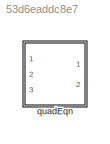
MODEL slx_53d6eaddc8e7
KIND library
CONFIG AbsTol = auto
CONFIG EnableMultiTasking = off
CONFIG FixedStep = auto
CONFIG MaxStep = auto
CONFIG MinStep = auto
CONFIG RelTol = 1e-3
CONFIG SampleTimeConstraint = Unconstrained
CONFIG SolverName = VariableStepAuto
CONFIG StartTime = 0.0
CONFIG StopTime = 10.0
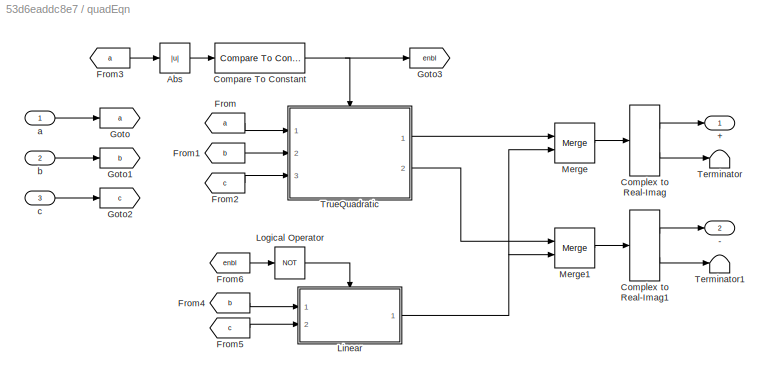
BLOCK [SubSystem] quadEqn
  Ports = [3, 2]
  RequestExecContextInheritance = off
BLOCK [Outport] quadEqn/+
  VectorParamsAs1DForOutWhenUnconnected = off
BLOCK [Outport] quadEqn/-
  Port = 2
  VectorParamsAs1DForOutWhenUnconnected = off
BLOCK [Abs] quadEqn/Abs
  SaturateOnIntegerOverflow = off
BLOCK [Reference] quadEqn/Compare To Constant  REF=simulink/Logic and Bit
Operations/Compare
To Constant
  Ports = [1, 1]
  SourceBlock = simulink/Logic and Bit\nOperations/Compare\nTo Constant
  SourceProductBaseCode = SL
  SourceType = Compare To Constant
BLOCK [ComplexToRealImag] quadEqn/Complex to Real-Imag
  Ports = [1, 2]
BLOCK [ComplexToRealImag] quadEqn/Complex to Real-Imag1
  Ports = [1, 2]
BLOCK [From] quadEqn/From
  GotoTag = a
BLOCK [From] quadEqn/From1
  GotoTag = b
BLOCK [From] quadEqn/From2
  GotoTag = c
BLOCK [From] quadEqn/From3
  GotoTag = a
BLOCK [From] quadEqn/From4
  GotoTag = b
BLOCK [From] quadEqn/From5
  GotoTag = c
BLOCK [From] quadEqn/From6
  GotoTag = enbl
BLOCK [Goto] quadEqn/Goto
  GotoTag = a
BLOCK [Goto] quadEqn/Goto1
  GotoTag = b
BLOCK [Goto] quadEqn/Goto2
  GotoTag = c
BLOCK [Goto] quadEqn/Goto3
  GotoTag = enbl
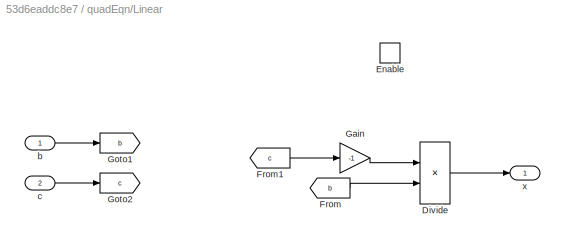
BLOCK [SubSystem] quadEqn/Linear
  Ports = [2, 1, 1]
  RequestExecContextInheritance = off
BLOCK [Product] quadEqn/Linear/Divide
  Inputs = */
  Ports = [2, 1]
BLOCK [EnablePort] quadEqn/Linear/Enable
  Ports = []
BLOCK [From] quadEqn/Linear/From
  GotoTag = b
BLOCK [From] quadEqn/Linear/From1
  GotoTag = c
BLOCK [Gain] quadEqn/Linear/Gain
  Gain = -1
BLOCK [Goto] quadEqn/Linear/Goto1
  GotoTag = b
BLOCK [Goto] quadEqn/Linear/Goto2
  GotoTag = c
BLOCK [Inport] quadEqn/Linear/b
BLOCK [Inport] quadEqn/Linear/c
  Port = 2
BLOCK [Outport] quadEqn/Linear/x
  VectorParamsAs1DForOutWhenUnconnected = off
BLOCK [Logic] quadEqn/Logical Operator
  AllPortsSameDT = off
  Operator = NOT
  OutDataTypeStr = boolean
  Ports = [1, 1]
BLOCK [Merge] quadEqn/Merge
  Ports = [2, 1]
BLOCK [Merge] quadEqn/Merge1
  Ports = [2, 1]
BLOCK [Terminator] quadEqn/Terminator
BLOCK [Terminator] quadEqn/Terminator1
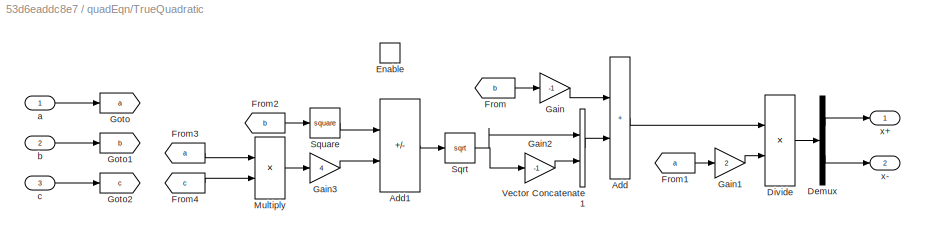
BLOCK [SubSystem] quadEqn/TrueQuadratic
  Ports = [3, 2, 1]
  RequestExecContextInheritance = off
BLOCK [Sum] quadEqn/TrueQuadratic/Add
  IconShape = rectangular
  Ports = [2, 1]
BLOCK [Sum] quadEqn/TrueQuadratic/Add1
  IconShape = rectangular
  Inputs = +-
  Ports = [2, 1]
BLOCK [Demux] quadEqn/TrueQuadratic/Demux
  Outputs = 2
  Ports = [1, 2]
BLOCK [Product] quadEqn/TrueQuadratic/Divide
  Inputs = */
  Ports = [2, 1]
BLOCK [EnablePort] quadEqn/TrueQuadratic/Enable
  Ports = []
BLOCK [From] quadEqn/TrueQuadratic/From
  GotoTag = b
BLOCK [From] quadEqn/TrueQuadratic/From1
  GotoTag = a
BLOCK [From] quadEqn/TrueQuadratic/From2
  GotoTag = b
BLOCK [From] quadEqn/TrueQuadratic/From3
  GotoTag = a
BLOCK [From] quadEqn/TrueQuadratic/From4
  GotoTag = c
BLOCK [Gain] quadEqn/TrueQuadratic/Gain
  Gain = -1
BLOCK [Gain] quadEqn/TrueQuadratic/Gain1
  Gain = 2
BLOCK [Gain] quadEqn/TrueQuadratic/Gain2
  Gain = -1
BLOCK [Gain] quadEqn/TrueQuadratic/Gain3
  Gain = 4
BLOCK [Goto] quadEqn/TrueQuadratic/Goto
  GotoTag = a
BLOCK [Goto] quadEqn/TrueQuadratic/Goto1
  GotoTag = b
BLOCK [Goto] quadEqn/TrueQuadratic/Goto2
  GotoTag = c
BLOCK [Product] quadEqn/TrueQuadratic/Multiply
  Ports = [2, 1]
BLOCK [Sqrt] quadEqn/TrueQuadratic/Sqrt
BLOCK [Math] quadEqn/TrueQuadratic/Square
  Operator = square
  Ports = [1, 1]
  SignedPower = on
BLOCK [Concatenate] quadEqn/TrueQuadratic/Vector Concatenate1
  Ports = [2, 1]
BLOCK [Inport] quadEqn/TrueQuadratic/a
BLOCK [Inport] quadEqn/TrueQuadratic/b
  Port = 2
BLOCK [Inport] quadEqn/TrueQuadratic/c
  Port = 3
BLOCK [Outport] quadEqn/TrueQuadratic/x+
  VectorParamsAs1DForOutWhenUnconnected = off
BLOCK [Outport] quadEqn/TrueQuadratic/x-
  Port = 2
  VectorParamsAs1DForOutWhenUnconnected = off
BLOCK [Inport] quadEqn/a
BLOCK [Inport] quadEqn/b
  Port = 2
BLOCK [Inport] quadEqn/c
  Port = 3
LINE quadEqn/Abs:1 -> quadEqn/Compare To Constant:1
NET quadEqn/Compare To Constant:1 -> quadEqn/Goto3:1, quadEqn/TrueQuadratic:enable
LINE quadEqn/Complex to Real-Imag1:1 -> quadEqn/-:1
LINE quadEqn/Complex to Real-Imag1:2 -> quadEqn/Terminator1:1
LINE quadEqn/Complex to Real-Imag:1 -> quadEqn/+:1
LINE quadEqn/Complex to Real-Imag:2 -> quadEqn/Terminator:1
LINE quadEqn/From1:1 -> quadEqn/TrueQuadratic:2
LINE quadEqn/From2:1 -> quadEqn/TrueQuadratic:3
LINE quadEqn/From3:1 -> quadEqn/Abs:1
LINE quadEqn/From4:1 -> quadEqn/Linear:1
LINE quadEqn/From5:1 -> quadEqn/Linear:2
LINE quadEqn/From6:1 -> quadEqn/Logical Operator:1
LINE quadEqn/From:1 -> quadEqn/TrueQuadratic:1
LINE quadEqn/Linear/Divide:1 -> quadEqn/Linear/x:1
LINE quadEqn/Linear/From1:1 -> quadEqn/Linear/Gain:1
LINE quadEqn/Linear/From:1 -> quadEqn/Linear/Divide:2
LINE quadEqn/Linear/Gain:1 -> quadEqn/Linear/Divide:1
LINE quadEqn/Linear/b:1 -> quadEqn/Linear/Goto1:1
LINE quadEqn/Linear/c:1 -> quadEqn/Linear/Goto2:1
NET quadEqn/Linear:1 -> quadEqn/Merge1:2, quadEqn/Merge:2
LINE quadEqn/Logical Operator:1 -> quadEqn/Linear:enable
LINE quadEqn/Merge1:1 -> quadEqn/Complex to Real-Imag1:1
LINE quadEqn/Merge:1 -> quadEqn/Complex to Real-Imag:1
LINE quadEqn/TrueQuadratic/Add1:1 -> quadEqn/TrueQuadratic/Sqrt:1
LINE quadEqn/TrueQuadratic/Add:1 -> quadEqn/TrueQuadratic/Divide:1
LINE quadEqn/TrueQuadratic/Demux:1 -> quadEqn/TrueQuadratic/x+:1
LINE quadEqn/TrueQuadratic/Demux:2 -> quadEqn/TrueQuadratic/x-:1
LINE quadEqn/TrueQuadratic/Divide:1 -> quadEqn/TrueQuadratic/Demux:1
LINE quadEqn/TrueQuadratic/From1:1 -> quadEqn/TrueQuadratic/Gain1:1
LINE quadEqn/TrueQuadratic/From2:1 -> quadEqn/TrueQuadratic/Square:1
LINE quadEqn/TrueQuadratic/From3:1 -> quadEqn/TrueQuadratic/Multiply:1
LINE quadEqn/TrueQuadratic/From4:1 -> quadEqn/TrueQuadratic/Multiply:2
LINE quadEqn/TrueQuadratic/From:1 -> quadEqn/TrueQuadratic/Gain:1
LINE quadEqn/TrueQuadratic/Gain1:1 -> quadEqn/TrueQuadratic/Divide:2
LINE quadEqn/TrueQuadratic/Gain2:1 -> quadEqn/TrueQuadratic/Vector Concatenate1:2
LINE quadEqn/TrueQuadratic/Gain3:1 -> quadEqn/TrueQuadratic/Add1:2
LINE quadEqn/TrueQuadratic/Gain:1 -> quadEqn/TrueQuadratic/Add:1
LINE quadEqn/TrueQuadratic/Multiply:1 -> quadEqn/TrueQuadratic/Gain3:1
NET quadEqn/TrueQuadratic/Sqrt:1 -> quadEqn/TrueQuadratic/Gain2:1, quadEqn/TrueQuadratic/Vector Concatenate1:1
LINE quadEqn/TrueQuadratic/Square:1 -> quadEqn/TrueQuadratic/Add1:1
LINE quadEqn/TrueQuadratic/Vector Concatenate1:1 -> quadEqn/TrueQuadratic/Add:2
LINE quadEqn/TrueQuadratic/a:1 -> quadEqn/TrueQuadratic/Goto:1
LINE quadEqn/TrueQuadratic/b:1 -> quadEqn/TrueQuadratic/Goto1:1
LINE quadEqn/TrueQuadratic/c:1 -> quadEqn/TrueQuadratic/Goto2:1
LINE quadEqn/TrueQuadratic:1 -> quadEqn/Merge:1
LINE quadEqn/TrueQuadratic:2 -> quadEqn/Merge1:1
LINE quadEqn/a:1 -> quadEqn/Goto:1
LINE quadEqn/b:1 -> quadEqn/Goto1:1
LINE quadEqn/c:1 -> quadEqn/Goto2:1
note: NET lines group one-source signal fan-out (src -> all destinations, sorted); 1:1 wires keep LINE
